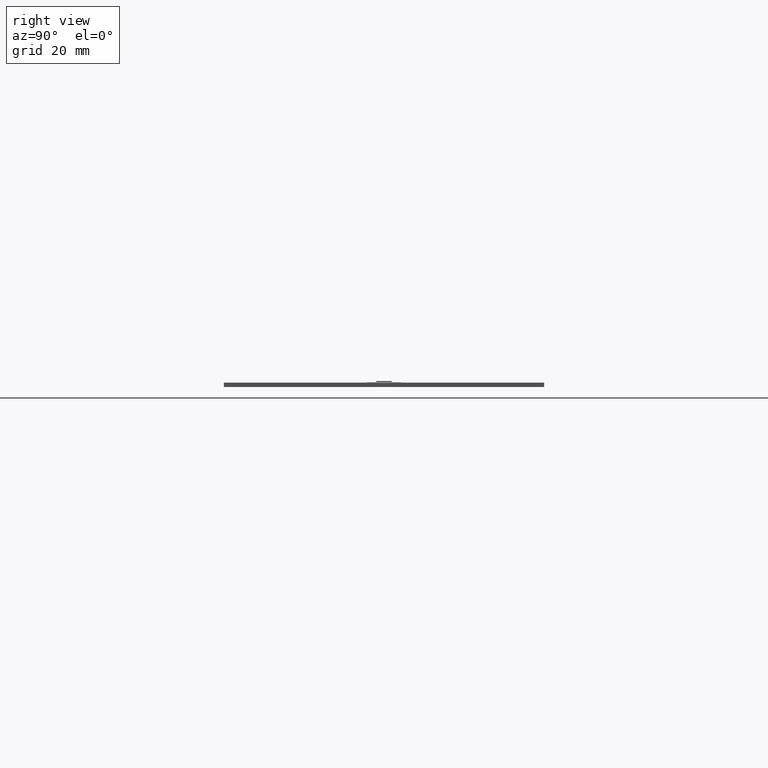
[diagram: clean part render]
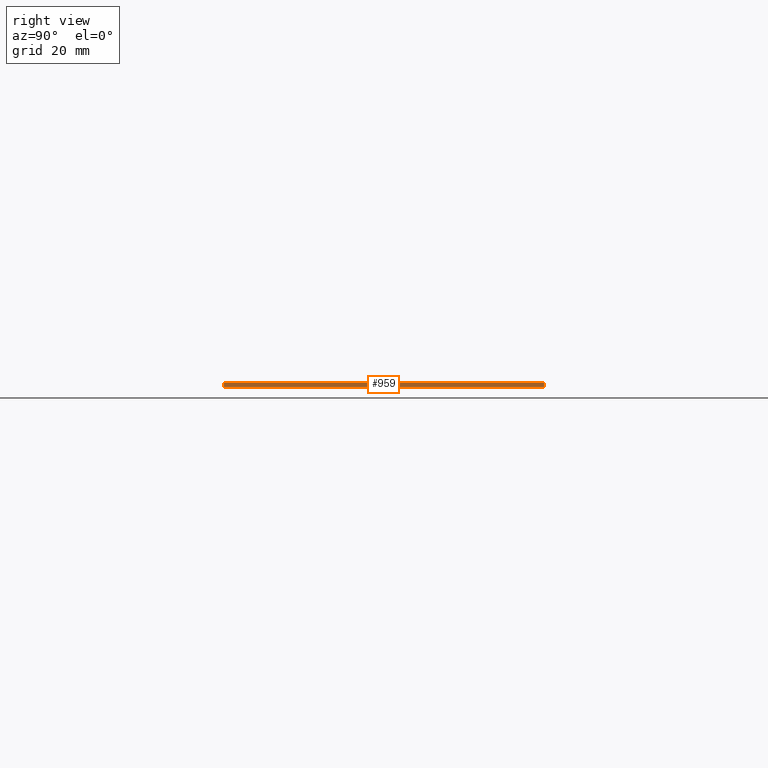
[diagram: same view with one face highlighted and labeled with its STEP entity id]
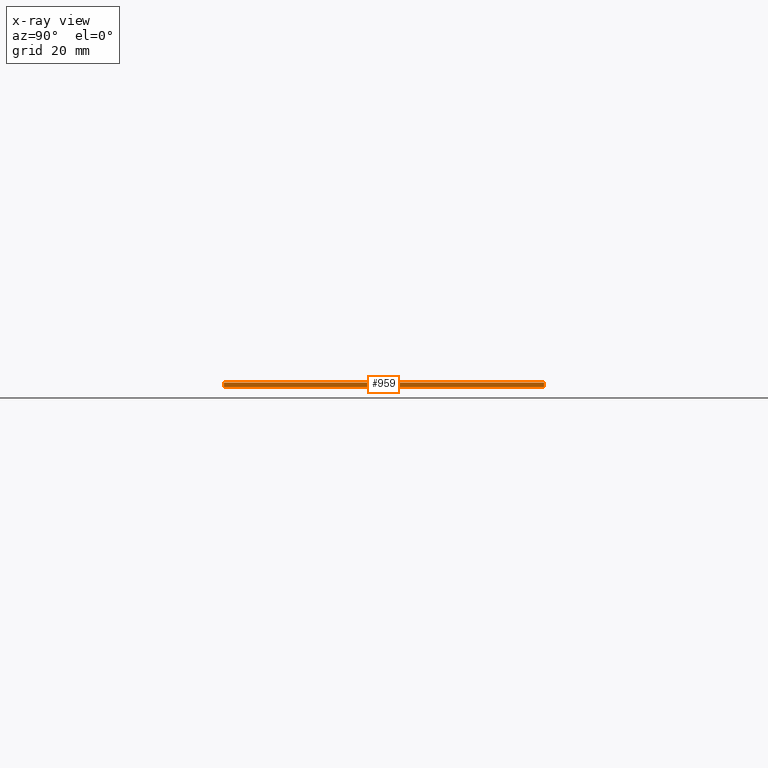
[diagram: x-ray of the same camera — body ghosted, the highlighted face saturated]
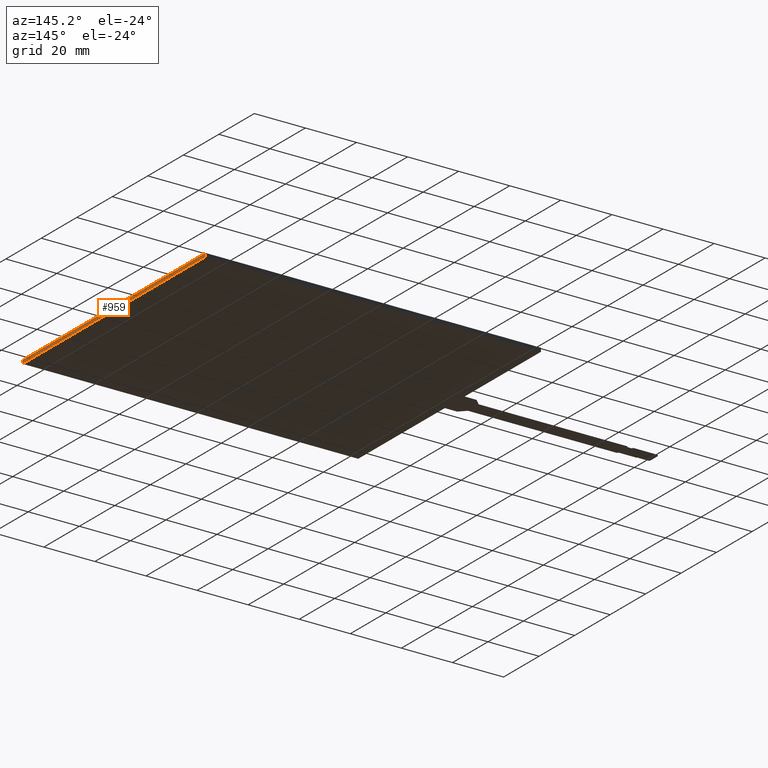
[diagram: same view with one face highlighted and labeled with its STEP entity id]
A machine part, right view. The second image highlights one B-rep face of the part: STEP entity #959.
The next image is the same camera in x-ray: the body ghosted, the highlighted face saturated — about 0% of this face is hidden behind the body in this view.
A second angle (auxiliary view) of the same face is appended — the face is thin or edge-on in the first view.
In plain terms, the highlighted planar face has unit normal (1, 0, 0).
Its self-contained STEP definition (entity closure, byte-faithful):
#49=FACE_OUTER_BOUND('',#103,.T.);
#103=EDGE_LOOP('',(#681,#682,#683,#684));
#170=LINE('',#1398,#296);
#175=LINE('',#1408,#301);
#176=LINE('',#1411,#302);
#177=LINE('',#1412,#303);
#296=VECTOR('',#1133,10.);
#301=VECTOR('',#1142,10.);
#302=VECTOR('',#1145,10.);
#303=VECTOR('',#1146,10.);
#411=VERTEX_POINT('',#1391);
#414=VERTEX_POINT('',#1396);
#417=VERTEX_POINT('',#1406);
#418=VERTEX_POINT('',#1410);
#514=EDGE_CURVE('',#414,#411,#170,.T.);
#519=EDGE_CURVE('',#414,#417,#175,.T.);
#520=EDGE_CURVE('',#418,#417,#176,.T.);
#521=EDGE_CURVE('',#411,#418,#177,.T.);
#681=ORIENTED_EDGE('',*,*,#514,.F.);
#682=ORIENTED_EDGE('',*,*,#519,.T.);
#683=ORIENTED_EDGE('',*,*,#520,.F.);
#684=ORIENTED_EDGE('',*,*,#521,.F.);
#913=PLANE('',#1032);
#959=ADVANCED_FACE('',(#49),#913,.T.);
#1032=AXIS2_PLACEMENT_3D('',#1409,#1143,#1144);
#1133=DIRECTION('',(0.,1.,0.));
#1142=DIRECTION('',(0.,0.,-1.));
#1143=DIRECTION('center_axis',(1.,0.,0.));
#1144=DIRECTION('ref_axis',(0.,-1.,0.));
#1145=DIRECTION('',(0.,-1.,0.));
#1146=DIRECTION('',(0.,0.,-1.));
#1391=CARTESIAN_POINT('',(63.7,51.5,0.));
#1396=CARTESIAN_POINT('',(63.7,-51.5,0.));
#1398=CARTESIAN_POINT('',(63.7,-51.5,0.));
#1406=CARTESIAN_POINT('',(63.7,-51.5,-1.4));
#1408=CARTESIAN_POINT('',(63.7,-51.5,0.));
#1409=CARTESIAN_POINT('Origin',(63.7,51.5,0.));
#1410=CARTESIAN_POINT('',(63.7,51.5,-1.4));
#1411=CARTESIAN_POINT('',(63.7,-51.5,-1.4));
#1412=CARTESIAN_POINT('',(63.7,51.5,0.));